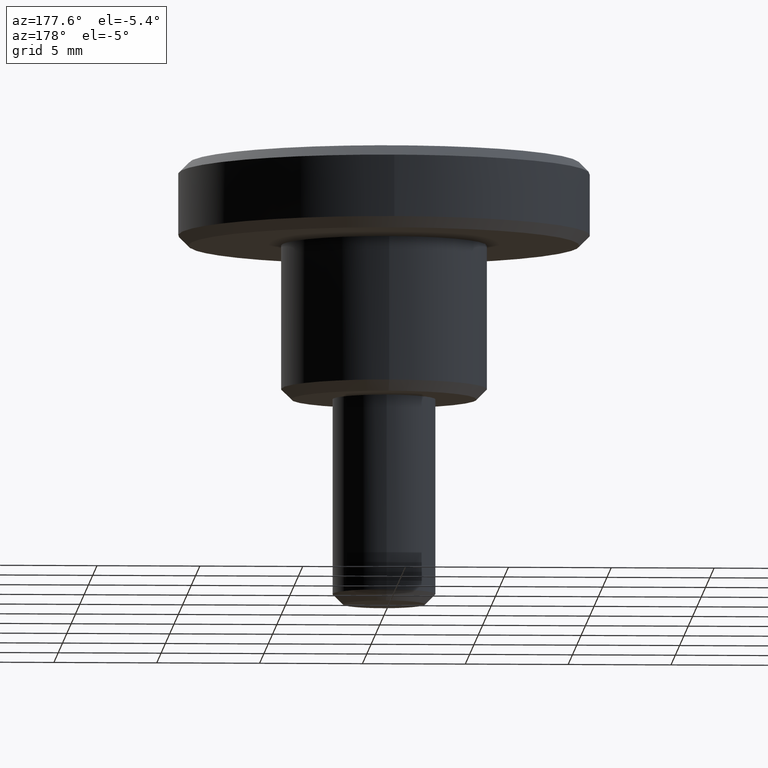
[diagram: clean part render]
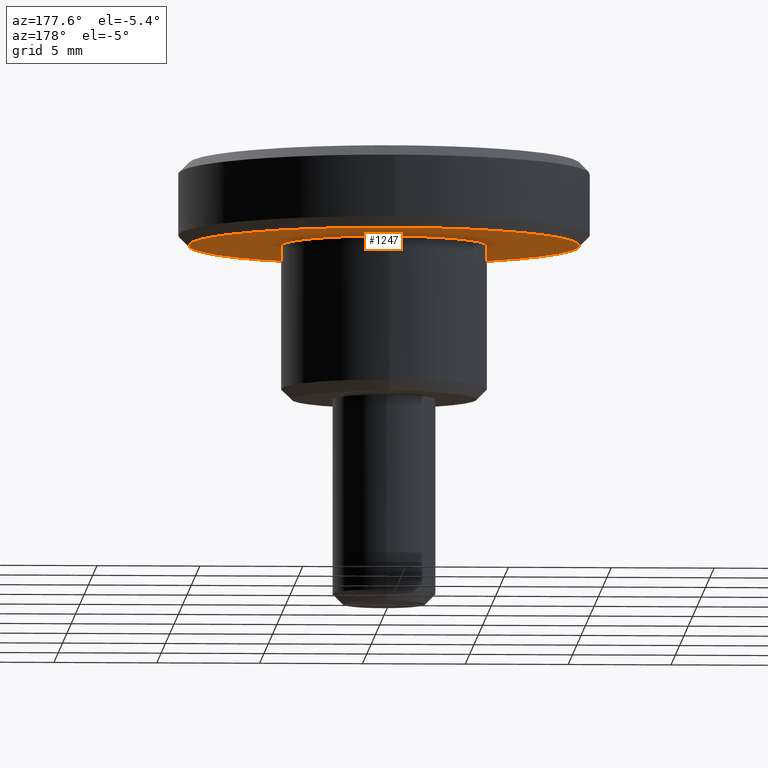
[diagram: same view with one face highlighted and labeled with its STEP entity id]
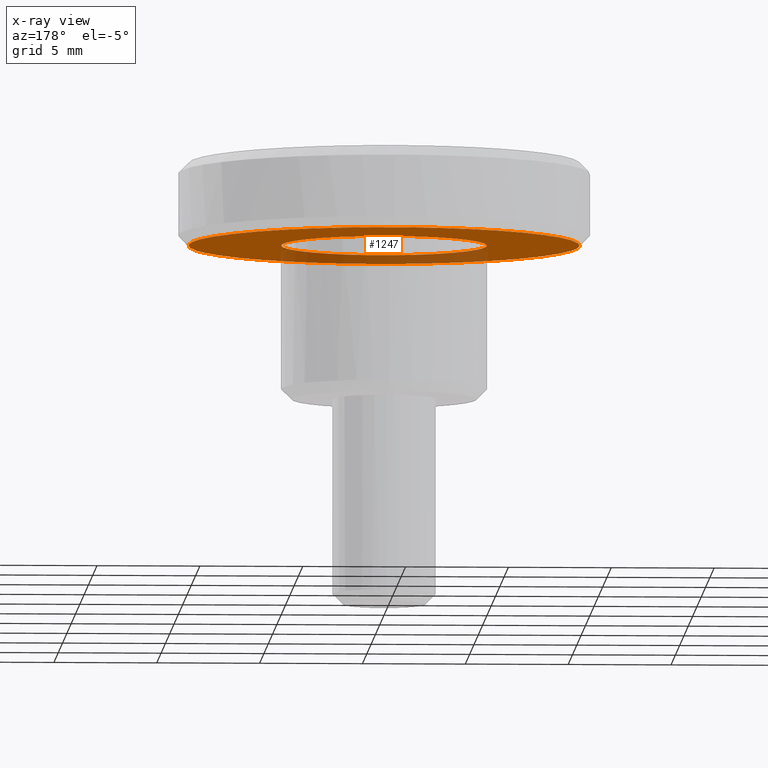
[diagram: x-ray of the same camera — body ghosted, the highlighted face saturated]
A machine part, auxiliary view. The second image highlights one B-rep face of the part: STEP entity #1247.
The next image is the same camera in x-ray: the body ghosted, the highlighted face saturated — about 25% of this face is hidden behind the body in this view.
In plain terms, the highlighted face is a freeform B-spline surface patch.
Its self-contained STEP definition (entity closure, byte-faithful):
#487=CARTESIAN_POINT('',(9.500000000000000,0.0,7.500000000000110));
#488=VERTEX_POINT('',#487);
#489=CARTESIAN_POINT('',(7.779228070752922,-5.452853438632870,7.500000000000085));
#490=VERTEX_POINT('',#489);
#491=CARTESIAN_POINT('',(9.500000000000000,0.0,7.500000000000110));
#492=CARTESIAN_POINT('',(9.500000000000000,-2.997941080174381,7.500000000000110));
#493=CARTESIAN_POINT('',(7.779228070752922,-5.452853438632869,7.500000000000085));
#501=(BOUNDED_CURVE()B_SPLINE_CURVE(2,(#491,#492,#493),.UNSPECIFIED.,.F.,.U.)B_SPLINE_CURVE_WITH_KNOTS((3,3),(0.0,0.098673726202873),.UNSPECIFIED.)CURVE()GEOMETRIC_REPRESENTATION_ITEM()RATIONAL_B_SPLINE_CURVE((1.0,0.884396538880492,0.860049271925871))REPRESENTATION_ITEM(''));
#502=EDGE_CURVE('',#488,#490,#501,.T.);
#504=CARTESIAN_POINT('',(-9.500000000000000,0.0,7.500000000000110));
#505=VERTEX_POINT('',#504);
#506=CARTESIAN_POINT('',(-9.500000000000000,0.0,7.500000000000110));
#507=CARTESIAN_POINT('',(-9.500000000000000,9.500000000000000,7.500000000000110));
#508=CARTESIAN_POINT('',(0.0,9.500000000000000,7.500000000000110));
#509=CARTESIAN_POINT('',(9.500000000000000,9.500000000000000,7.500000000000110));
#510=CARTESIAN_POINT('',(9.500000000000000,0.0,7.500000000000110));
#518=(BOUNDED_CURVE()B_SPLINE_CURVE(2,(#506,#507,#508,#509,#510),.UNSPECIFIED.,.F.,.U.)B_SPLINE_CURVE_WITH_KNOTS((3,2,3),(0.500000000000000,0.750000000000000,1.0),.UNSPECIFIED.)CURVE()GEOMETRIC_REPRESENTATION_ITEM()RATIONAL_B_SPLINE_CURVE((1.0,0.707106781186548,1.0,0.707106781186548,1.0))REPRESENTATION_ITEM(''));
#519=EDGE_CURVE('',#505,#488,#518,.T.);
#521=CARTESIAN_POINT('',(0.082902087252670,-9.499638269111962,7.500000000002550));
#522=VERTEX_POINT('',#521);
#523=CARTESIAN_POINT('',(0.082902087252670,-9.499638269111962,7.500000000002550));
#524=CARTESIAN_POINT('',(0.041451832814762,-9.499999999999998,7.500000000000109));
#525=CARTESIAN_POINT('',(0.0,-9.500000000000000,7.500000000000110));
#526=CARTESIAN_POINT('',(-9.500000000000000,-9.500000000000000,7.500000000000110));
#527=CARTESIAN_POINT('',(-9.500000000000000,0.0,7.500000000000110));
#535=(BOUNDED_CURVE()B_SPLINE_CURVE(2,(#523,#524,#525,#526,#527),.UNSPECIFIED.,.F.,.U.)B_SPLINE_CURVE_WITH_KNOTS((3,2,3),(0.248460105664342,0.250000000000000,0.500000000000000),.UNSPECIFIED.)CURVE()GEOMETRIC_REPRESENTATION_ITEM()RATIONAL_B_SPLINE_CURVE((0.996414028098853,0.998195901565586,1.0,0.707106781186548,1.0))REPRESENTATION_ITEM(''));
#536=EDGE_CURVE('',#522,#505,#535,.T.);
#631=CARTESIAN_POINT('',(7.779228070752922,-5.452853438632870,7.500000000000085));
#632=CARTESIAN_POINT('',(4.972542842354439,-9.456967020676762,7.500000000000111));
#633=CARTESIAN_POINT('',(0.082902087252670,-9.499638269111962,7.500000000002550));
#641=(BOUNDED_CURVE()B_SPLINE_CURVE(2,(#631,#632,#633),.UNSPECIFIED.,.F.,.U.)B_SPLINE_CURVE_WITH_KNOTS((3,3),(0.098673726202873,0.248460105664342),.UNSPECIFIED.)CURVE()GEOMETRIC_REPRESENTATION_ITEM()RATIONAL_B_SPLINE_CURVE((0.860049271925871,0.823090203820786,0.996414028098853))REPRESENTATION_ITEM(''));
#642=EDGE_CURVE('',#490,#522,#641,.T.);
#1029=CARTESIAN_POINT('',(-0.043628661551656,4.999809650364210,7.500000000000000));
#1030=VERTEX_POINT('',#1029);
#1036=CARTESIAN_POINT('',(5.0,0.0,7.500000000000000));
#1037=VERTEX_POINT('',#1036);
#1038=CARTESIAN_POINT('',(-0.043628661551656,4.999809650364210,7.500000000000000));
#1039=CARTESIAN_POINT('',(-0.021814746018728,5.0,7.500000000000000));
#1040=CARTESIAN_POINT('',(0.0,5.0,7.500000000000000));
#1041=CARTESIAN_POINT('',(5.000000000000001,5.000000000000001,7.500000000000000));
#1042=CARTESIAN_POINT('',(5.0,0.0,7.500000000000000));
#1050=(BOUNDED_CURVE()B_SPLINE_CURVE(2,(#1038,#1039,#1040,#1041,#1042),.UNSPECIFIED.,.F.,.U.)B_SPLINE_CURVE_WITH_KNOTS((3,2,3),(0.248460247146196,0.250000000000000,0.500000000000000),.UNSPECIFIED.)CURVE()GEOMETRIC_REPRESENTATION_ITEM()RATIONAL_B_SPLINE_CURVE((0.996414355527691,0.998196067321889,1.0,0.707106781186548,1.0))REPRESENTATION_ITEM(''));
#1051=EDGE_CURVE('',#1030,#1037,#1050,.T.);
#1053=CARTESIAN_POINT('',(0.620634546352657,-4.961331752649010,7.500000000000000));
#1054=VERTEX_POINT('',#1053);
#1055=CARTESIAN_POINT('',(5.0,0.0,7.500000000000000));
#1056=CARTESIAN_POINT('',(5.0,-4.413497899335222,7.500000000000000));
#1057=CARTESIAN_POINT('',(0.620634546352657,-4.961331752649010,7.500000000000000));
#1065=(BOUNDED_CURVE()B_SPLINE_CURVE(2,(#1055,#1056,#1057),.UNSPECIFIED.,.F.,.U.)B_SPLINE_CURVE_WITH_KNOTS((3,3),(0.500000000000000,0.728526256763575),.UNSPECIFIED.)CURVE()GEOMETRIC_REPRESENTATION_ITEM()RATIONAL_B_SPLINE_CURVE((1.0,0.732264836292508,0.954005790713464))REPRESENTATION_ITEM(''));
#1066=EDGE_CURVE('',#1037,#1054,#1065,.T.);
#1101=CARTESIAN_POINT('',(-5.0,0.0,7.500000000000000));
#1102=VERTEX_POINT('',#1101);
#1103=CARTESIAN_POINT('',(0.620634546352657,-4.961331752649010,7.500000000000000));
#1104=CARTESIAN_POINT('',(0.311521873663028,-5.0,7.500000000000001));
#1105=CARTESIAN_POINT('',(0.0,-5.0,7.500000000000000));
#1106=CARTESIAN_POINT('',(-5.000000000000001,-5.000000000000001,7.500000000000000));
#1107=CARTESIAN_POINT('',(-5.0,0.0,7.500000000000000));
#1115=(BOUNDED_CURVE()B_SPLINE_CURVE(2,(#1103,#1104,#1105,#1106,#1107),.UNSPECIFIED.,.F.,.U.)B_SPLINE_CURVE_WITH_KNOTS((3,2,3),(0.728526256763575,0.750000000000000,1.0),.UNSPECIFIED.)CURVE()GEOMETRIC_REPRESENTATION_ITEM()RATIONAL_B_SPLINE_CURVE((0.954005790713464,0.974841944894039,1.0,0.707106781186548,1.0))REPRESENTATION_ITEM(''));
#1116=EDGE_CURVE('',#1054,#1102,#1115,.T.);
#1118=CARTESIAN_POINT('',(-5.0,0.0,7.500000000000000));
#1119=CARTESIAN_POINT('',(-4.999999999999999,4.956560034326192,7.500000000000000));
#1120=CARTESIAN_POINT('',(-0.043628661551656,4.999809650364210,7.500000000000000));
#1128=(BOUNDED_CURVE()B_SPLINE_CURVE(2,(#1118,#1119,#1120),.UNSPECIFIED.,.F.,.U.)B_SPLINE_CURVE_WITH_KNOTS((3,3),(0.0,0.248460247146196),.UNSPECIFIED.)CURVE()GEOMETRIC_REPRESENTATION_ITEM()RATIONAL_B_SPLINE_CURVE((1.0,0.708910713864659,0.996414355527691))REPRESENTATION_ITEM(''));
#1129=EDGE_CURVE('',#1102,#1030,#1128,.T.);
#1230=CARTESIAN_POINT('',(-10.449049963174311,-10.448670594845121,7.500000000000110));
#1231=CARTESIAN_POINT('',(10.449050472794029,-10.448670594845121,7.500000000000110));
#1232=CARTESIAN_POINT('',(-10.449049963174311,10.449032424841221,7.500000000000110));
#1233=CARTESIAN_POINT('',(10.449050472794029,10.449032424841221,7.500000000000110));
#1234=B_SPLINE_SURFACE_WITH_KNOTS('',1,1,((#1230,#1232),(#1231,#1233)),.UNSPECIFIED.,.F.,.F.,.U.,(2,2),(2,2),(0.0,20.898100435968342),(0.0,20.897703019686340),.UNSPECIFIED.);
#1235=ORIENTED_EDGE('',*,*,#502,.T.);
#1236=ORIENTED_EDGE('',*,*,#642,.T.);
#1237=ORIENTED_EDGE('',*,*,#536,.T.);
#1238=ORIENTED_EDGE('',*,*,#519,.T.);
#1239=EDGE_LOOP('',(#1235,#1236,#1237,#1238));
#1240=FACE_OUTER_BOUND('',#1239,.T.);
#1241=ORIENTED_EDGE('',*,*,#1129,.F.);
#1242=ORIENTED_EDGE('',*,*,#1116,.F.);
#1243=ORIENTED_EDGE('',*,*,#1066,.F.);
#1244=ORIENTED_EDGE('',*,*,#1051,.F.);
#1245=EDGE_LOOP('',(#1241,#1242,#1243,#1244));
#1246=FACE_BOUND('',#1245,.T.);
#1247=ADVANCED_FACE('',(#1240,#1246),#1234,.F.);